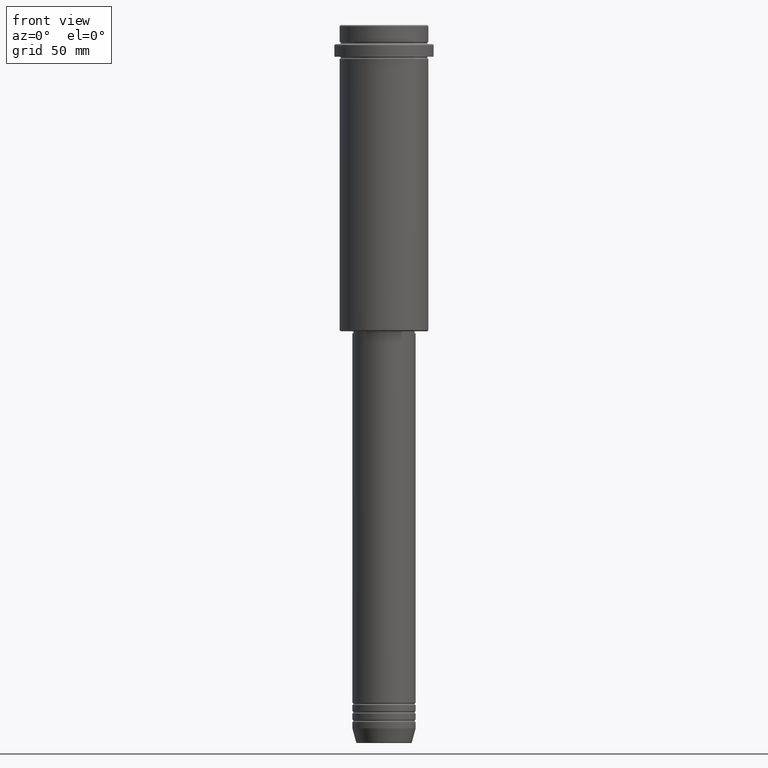
[diagram: clean part render]
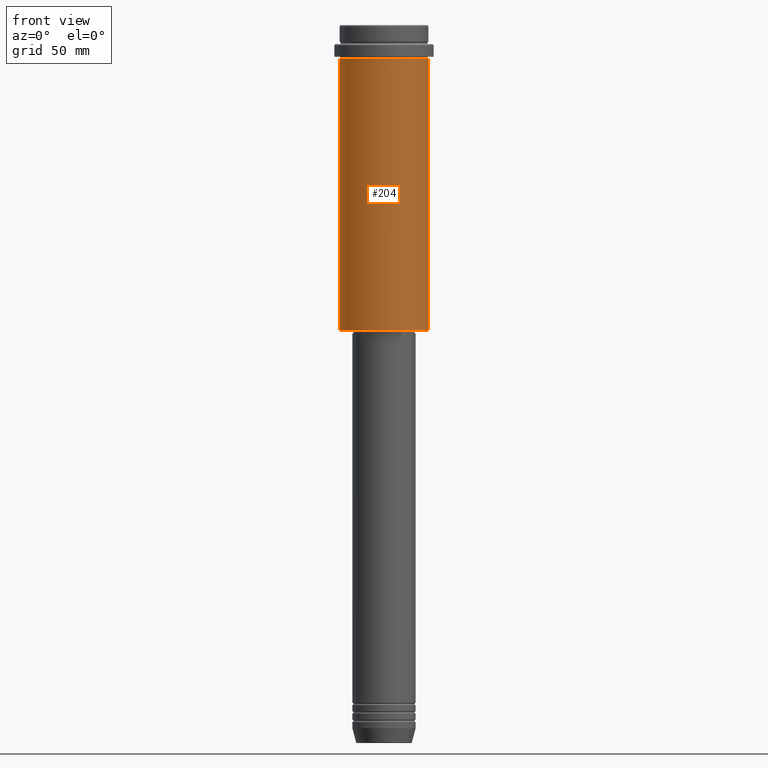
[diagram: same view with one face highlighted and labeled with its STEP entity id]
A machine part, front view. The second image highlights one B-rep face of the part: STEP entity #204.
In plain terms, the highlighted cylindrical surface (partial cylindrical patch) has radius 21 mm, axis along (-0, -0, 1).
Its self-contained STEP definition (entity closure, byte-faithful):
#10 = AXIS2_PLACEMENT_3D ( 'NONE', #180, #1393, #849 ) ;
#76 = CARTESIAN_POINT ( 'NONE',  ( -20.99999999999999645, 2.571758278209441267E-15, -144.5000000000000568 ) ) ;
#96 = VERTEX_POINT ( 'NONE', #1133 ) ;
#150 = EDGE_LOOP ( 'NONE', ( #460, #668, #526, #999 ) ) ;
#180 = CARTESIAN_POINT ( 'NONE',  ( 0.000000000000000000, 0.000000000000000000, 0.000000000000000000 ) ) ;
#204 = ADVANCED_FACE ( 'NONE', ( #289 ), #1276, .T. ) ;
#289 = FACE_OUTER_BOUND ( 'NONE', #150, .T. ) ;
#299 = VERTEX_POINT ( 'NONE', #1064 ) ;
#301 = DIRECTION ( 'NONE',  ( -0.000000000000000000, -0.000000000000000000, 1.000000000000000000 ) ) ;
#314 = EDGE_CURVE ( 'NONE', #299, #410, #1180, .T. ) ;
#348 = DIRECTION ( 'NONE',  ( -0.000000000000000000, -0.000000000000000000, 1.000000000000000000 ) ) ;
#410 = VERTEX_POINT ( 'NONE', #1103 ) ;
#433 = DIRECTION ( 'NONE',  ( -0.000000000000000000, -0.000000000000000000, 1.000000000000000000 ) ) ;
#460 = ORIENTED_EDGE ( 'NONE', *, *, #1153, .F. ) ;
#516 = LINE ( 'NONE', #1055, #910 ) ;
#526 = ORIENTED_EDGE ( 'NONE', *, *, #314, .T. ) ;
#563 = CARTESIAN_POINT ( 'NONE',  ( 0.000000000000000000, 0.000000000000000000, -16.00000000000000355 ) ) ;
#668 = ORIENTED_EDGE ( 'NONE', *, *, #1346, .T. ) ;
#763 = CARTESIAN_POINT ( 'NONE',  ( 0.000000000000000000, 0.000000000000000000, -144.5000000000000568 ) ) ;
#783 = VERTEX_POINT ( 'NONE', #76 ) ;
#813 = EDGE_CURVE ( 'NONE', #96, #410, #1390, .T. ) ;
#839 = VECTOR ( 'NONE', #301, 1000.000000000000000 ) ;
#849 = DIRECTION ( 'NONE',  ( 1.000000000000000000, 0.000000000000000000, 0.000000000000000000 ) ) ;
#910 = VECTOR ( 'NONE', #1358, 1000.000000000000000 ) ;
#974 = DIRECTION ( 'NONE',  ( 1.000000000000000000, 0.000000000000000000, 0.000000000000000000 ) ) ;
#980 = CIRCLE ( 'NONE', #1072, 20.99999999999999645 ) ;
#999 = ORIENTED_EDGE ( 'NONE', *, *, #813, .F. ) ;
#1055 = CARTESIAN_POINT ( 'NONE',  ( -20.99999999999999645, 2.571758278209441267E-15, 0.000000000000000000 ) ) ;
#1064 = CARTESIAN_POINT ( 'NONE',  ( 20.99999999999999645, 0.000000000000000000, -144.5000000000000568 ) ) ;
#1072 = AXIS2_PLACEMENT_3D ( 'NONE', #763, #348, #1200 ) ;
#1103 = CARTESIAN_POINT ( 'NONE',  ( 20.99999999999999645, 0.000000000000000000, -16.00000000000000355 ) ) ;
#1133 = CARTESIAN_POINT ( 'NONE',  ( -20.99999999999999645, 2.571758278209441267E-15, -16.00000000000000355 ) ) ;
#1153 = EDGE_CURVE ( 'NONE', #783, #96, #516, .T. ) ;
#1180 = LINE ( 'NONE', #1282, #839 ) ;
#1200 = DIRECTION ( 'NONE',  ( -1.000000000000000000, 0.000000000000000000, 0.000000000000000000 ) ) ;
#1276 = CYLINDRICAL_SURFACE ( 'NONE', #10, 20.99999999999999645 ) ;
#1282 = CARTESIAN_POINT ( 'NONE',  ( 20.99999999999999645, 0.000000000000000000, 0.000000000000000000 ) ) ;
#1346 = EDGE_CURVE ( 'NONE', #783, #299, #980, .T. ) ;
#1358 = DIRECTION ( 'NONE',  ( -0.000000000000000000, -0.000000000000000000, 1.000000000000000000 ) ) ;
#1369 = AXIS2_PLACEMENT_3D ( 'NONE', #563, #433, #974 ) ;
#1390 = CIRCLE ( 'NONE', #1369, 20.99999999999999645 ) ;
#1393 = DIRECTION ( 'NONE',  ( -0.000000000000000000, -0.000000000000000000, 1.000000000000000000 ) ) ;